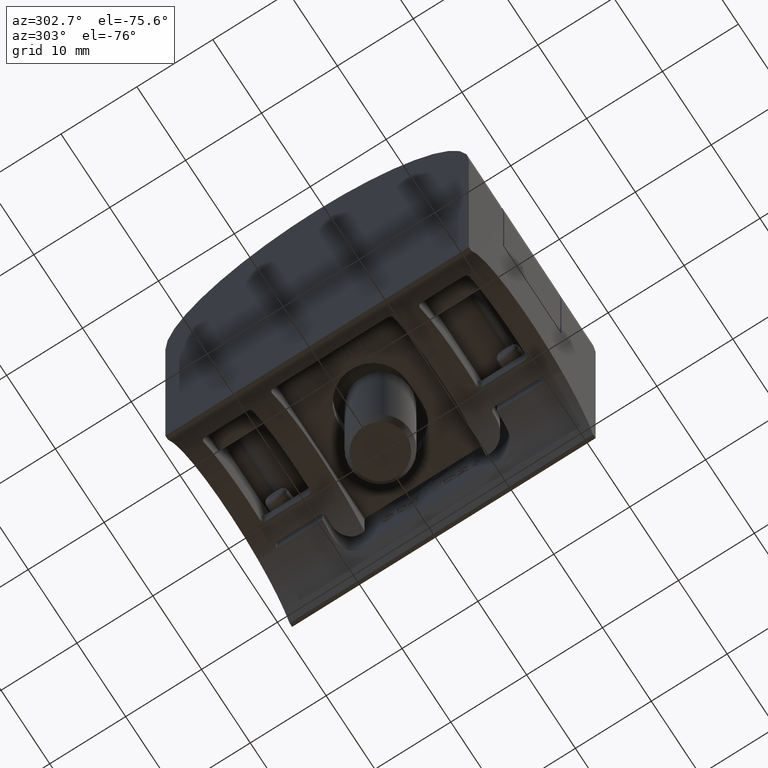
[diagram: clean part render]
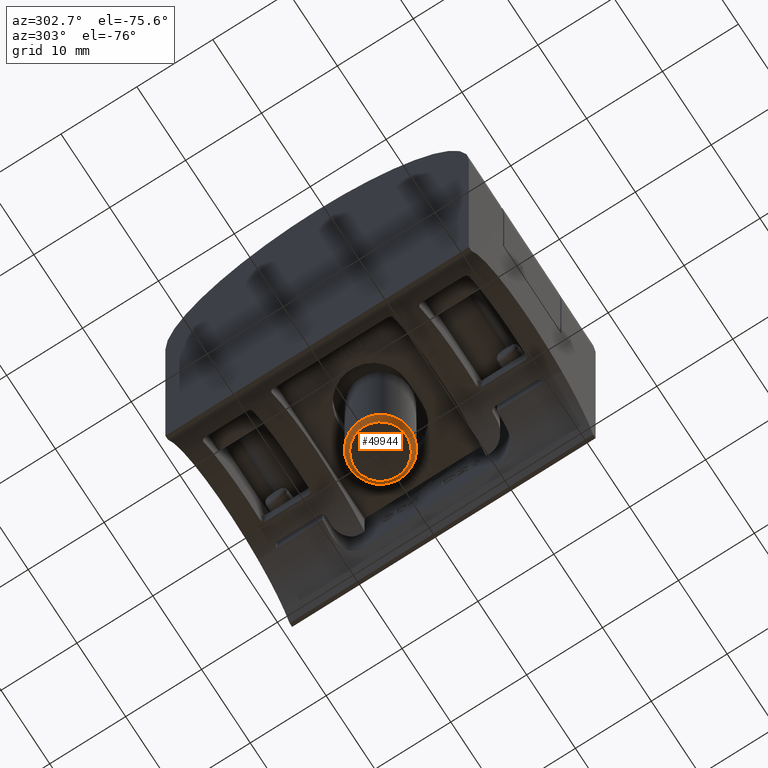
[diagram: same view with one face highlighted and labeled with its STEP entity id]
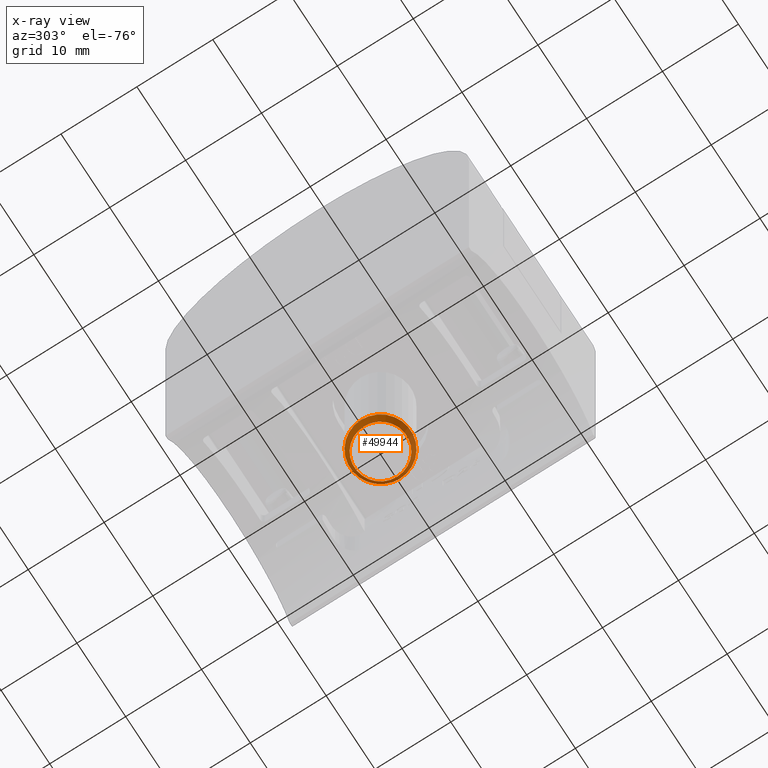
[diagram: x-ray of the same camera — body ghosted, the highlighted face saturated]
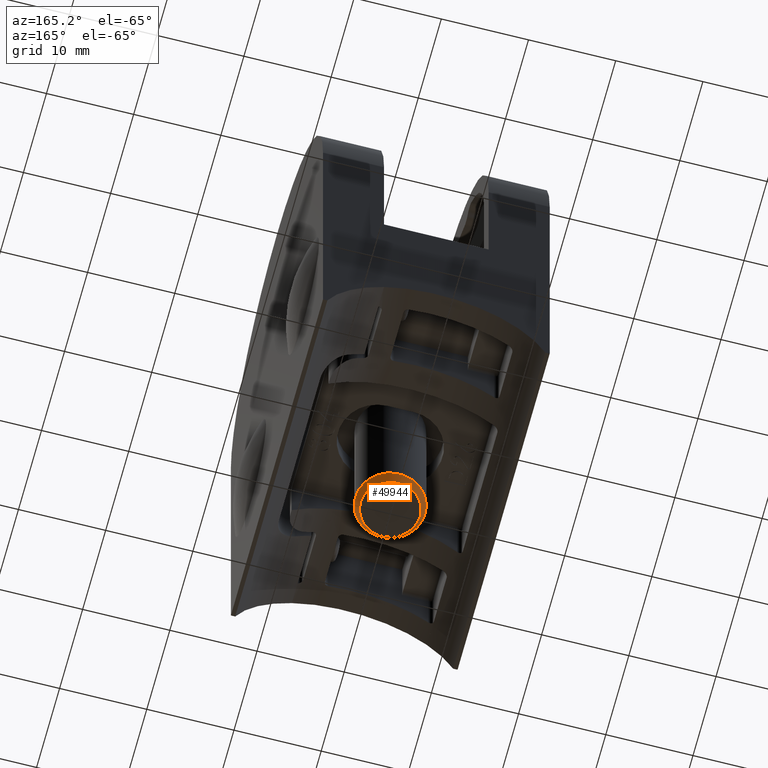
[diagram: same view with one face highlighted and labeled with its STEP entity id]
A machine part, auxiliary view. The second image highlights one B-rep face of the part: STEP entity #49944.
The next image is the same camera in x-ray: the body ghosted, the highlighted face saturated — about 0% of this face is hidden behind the body in this view.
A second angle (auxiliary view) of the same face is appended — the face is thin or edge-on in the first view.
In plain terms, the highlighted conical surface has half-angle 30 deg.
Its self-contained STEP definition (entity closure, byte-faithful):
#2675 = AXIS2_PLACEMENT_3D ( 'NONE', #66079, #54665, #21079 ) ;
#4378 = EDGE_LOOP ( 'NONE', ( #65373 ) ) ;
#6804 = VERTEX_POINT ( 'NONE', #31317 ) ;
#10490 = ORIENTED_EDGE ( 'NONE', *, *, #59014, .F. ) ;
#14647 = FACE_OUTER_BOUND ( 'NONE', #17012, .T. ) ;
#16070 = CIRCLE ( 'NONE', #51792, 3.422649730810373825 ) ;
#17012 = EDGE_LOOP ( 'NONE', ( #10490 ) ) ;
#17461 = CIRCLE ( 'NONE', #2675, 4.000000000000000000 ) ;
#21079 = DIRECTION ( 'NONE',  ( 0.000000000000000000, 0.000000000000000000, -1.000000000000000000 ) ) ;
#28893 = DIRECTION ( 'NONE',  ( 0.000000000000000000, 0.000000000000000000, 1.000000000000000000 ) ) ;
#31317 = CARTESIAN_POINT ( 'NONE',  ( 0.000000000000000000, -18.99999999999999645, -4.000000000000000000 ) ) ;
#37112 = CARTESIAN_POINT ( 'NONE',  ( 0.000000000000000000, -20.00000000000000000, 0.000000000000000000 ) ) ;
#37345 = DIRECTION ( 'NONE',  ( 0.000000000000000000, -1.000000000000000000, 0.000000000000000000 ) ) ;
#46691 = VERTEX_POINT ( 'NONE', #47073 ) ;
#47073 = CARTESIAN_POINT ( 'NONE',  ( 0.000000000000000000, -20.00000000000000000, -3.422649730810373825 ) ) ;
#48698 = DIRECTION ( 'NONE',  ( 0.000000000000000000, 0.000000000000000000, -1.000000000000000000 ) ) ;
#49944 = ADVANCED_FACE ( 'NONE', ( #14647, #70903 ), #59703, .T. ) ;
#50683 = CARTESIAN_POINT ( 'NONE',  ( 0.000000000000000000, -20.00000000000000000, 0.000000000000000000 ) ) ;
#51792 = AXIS2_PLACEMENT_3D ( 'NONE', #37112, #37345, #48698 ) ;
#54665 = DIRECTION ( 'NONE',  ( 0.000000000000000000, 1.000000000000000000, 0.000000000000000000 ) ) ;
#55155 = EDGE_CURVE ( 'NONE', #46691, #46691, #16070, .T. ) ;
#58976 = AXIS2_PLACEMENT_3D ( 'NONE', #50683, #62040, #28893 ) ;
#59014 = EDGE_CURVE ( 'NONE', #6804, #6804, #17461, .T. ) ;
#59703 = CONICAL_SURFACE ( 'NONE', #58976, 3.422649730810373825, 0.5235987755982972613 ) ;
#62040 = DIRECTION ( 'NONE',  ( 0.000000000000000000, 1.000000000000000000, 0.000000000000000000 ) ) ;
#65373 = ORIENTED_EDGE ( 'NONE', *, *, #55155, .F. ) ;
#66079 = CARTESIAN_POINT ( 'NONE',  ( 0.000000000000000000, -18.99999999999999645, 0.000000000000000000 ) ) ;
#70903 = FACE_BOUND ( 'NONE', #4378, .T. ) ;